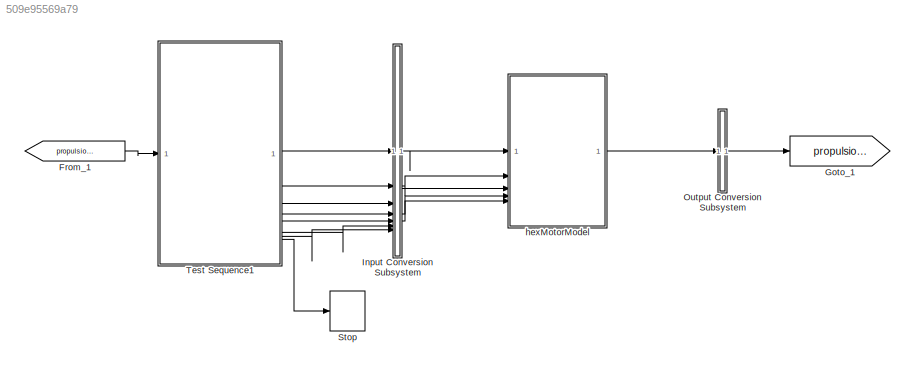
MODEL slx_509e95569a79
KIND model
BLOCK [From] From_1
  GotoTag = propulsionBus
BLOCK [Goto] Goto_1
  GotoTag = propulsionBus
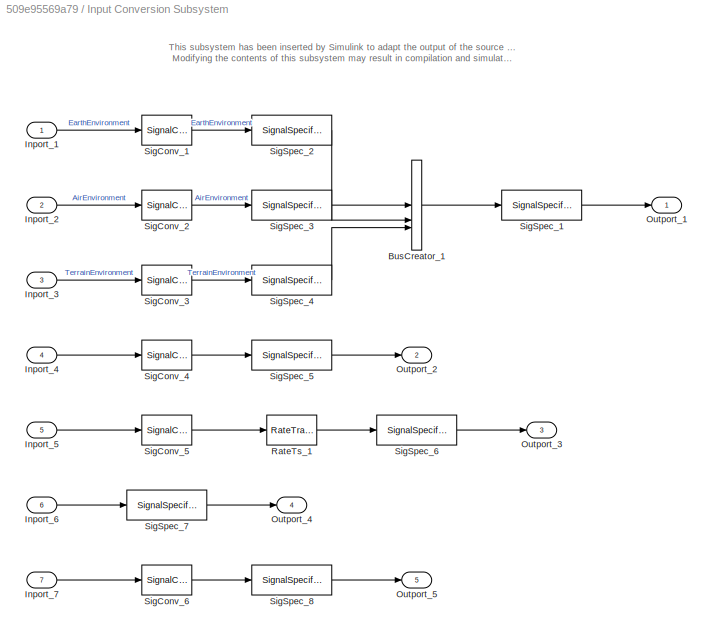
BLOCK [SubSystem] Input Conversion Subsystem
  AttributesFormatString = %<Description>
  Description = Signal spec.\nand routing
  Permissions = ReadOnly
  PermitHierarchicalResolution = ExplicitOnly
  Tag = __SLT_ICS__
  TreatAsGroupedWhenPropagatingVariantConditions = off
  UserDataPersistent = on
BLOCK [BusCreator] Input Conversion Subsystem/BusCreator_1
  InheritFromInputs = on
  Inputs = 3
  OutDataTypeStr = Bus: EnvironmentBus
BLOCK [Inport] Input Conversion Subsystem/Inport_1
BLOCK [Inport] Input Conversion Subsystem/Inport_2
  Port = 2
BLOCK [Inport] Input Conversion Subsystem/Inport_3
  Port = 3
BLOCK [Inport] Input Conversion Subsystem/Inport_4
  Port = 4
BLOCK [Inport] Input Conversion Subsystem/Inport_5
  Port = 5
BLOCK [Inport] Input Conversion Subsystem/Inport_6
  Port = 6
BLOCK [Inport] Input Conversion Subsystem/Inport_7
  Port = 7
BLOCK [Outport] Input Conversion Subsystem/Outport_1
BLOCK [Outport] Input Conversion Subsystem/Outport_2
  Port = 2
BLOCK [Outport] Input Conversion Subsystem/Outport_3
  Port = 3
BLOCK [Outport] Input Conversion Subsystem/Outport_4
  Port = 4
BLOCK [Outport] Input Conversion Subsystem/Outport_5
  Port = 5
BLOCK [RateTransition] Input Conversion Subsystem/RateTs_1
  OutPortSampleTime = 0.004
BLOCK [SignalConversion] Input Conversion Subsystem/SigConv_1
  ConversionOutput = Nonvirtual bus
  OverrideOpt = off
BLOCK [SignalConversion] Input Conversion Subsystem/SigConv_2
  ConversionOutput = Nonvirtual bus
  OverrideOpt = off
BLOCK [SignalConversion] Input Conversion Subsystem/SigConv_3
  ConversionOutput = Nonvirtual bus
  OverrideOpt = off
BLOCK [SignalConversion] Input Conversion Subsystem/SigConv_4
  ConversionOutput = Virtual bus
  OverrideOpt = off
BLOCK [SignalConversion] Input Conversion Subsystem/SigConv_5
  ConversionOutput = Virtual bus
  OverrideOpt = off
BLOCK [SignalConversion] Input Conversion Subsystem/SigConv_6
  ConversionOutput = Virtual bus
  OverrideOpt = off
BLOCK [SignalSpecification] Input Conversion Subsystem/SigSpec_1
  OutDataTypeStr = Bus: EnvironmentBus
  SampleTime = [-1, 0]
BLOCK [SignalSpecification] Input Conversion Subsystem/SigSpec_2
  BusOutputAsStruct = on
  Dimensions = [1]
  OutDataTypeStr = Bus: EarthEnvironmentBus
  SignalType = real
  VarSizeSig = No
BLOCK [SignalSpecification] Input Conversion Subsystem/SigSpec_3
  BusOutputAsStruct = on
  Dimensions = [1]
  OutDataTypeStr = Bus: AirEnvironmentBus
  SignalType = real
  VarSizeSig = No
BLOCK [SignalSpecification] Input Conversion Subsystem/SigSpec_4
  BusOutputAsStruct = on
  Dimensions = [1]
  OutDataTypeStr = Bus: TerrainEnvironmentBus
  SignalType = real
  VarSizeSig = No
BLOCK [SignalSpecification] Input Conversion Subsystem/SigSpec_5
  OutDataTypeStr = Bus: MotorCommandHexBus
BLOCK [SignalSpecification] Input Conversion Subsystem/SigSpec_6
  OutDataTypeStr = Bus: AirDataBus
BLOCK [SignalSpecification] Input Conversion Subsystem/SigSpec_7
  Dimensions = [1]
  OutDataTypeStr = double
  SampleTime = [-1, 0]
  SignalType = real
  VarSizeSig = No
BLOCK [SignalSpecification] Input Conversion Subsystem/SigSpec_8
  OutDataTypeStr = Bus: FailureBus
  SampleTime = [-1, 0]
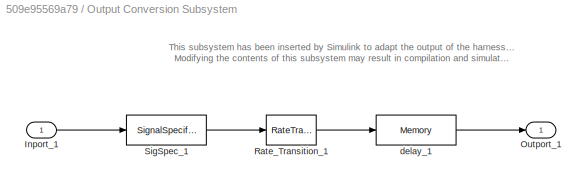
BLOCK [SubSystem] Output Conversion Subsystem
  AttributesFormatString = %<Description>
  Description = Signal spec.\nand routing
  Permissions = ReadOnly
  PermitHierarchicalResolution = ExplicitOnly
  Tag = __SLT_OCS__
  TreatAsGroupedWhenPropagatingVariantConditions = off
  UserDataPersistent = on
BLOCK [Inport] Output Conversion Subsystem/Inport_1
BLOCK [Outport] Output Conversion Subsystem/Outport_1
BLOCK [RateTransition] Output Conversion Subsystem/Rate_Transition_1
  OutPortSampleTimeOpt = Inherit
BLOCK [SignalSpecification] Output Conversion Subsystem/SigSpec_1
  BusOutputAsStruct = on
  Dimensions = [1]
  OutDataTypeStr = Bus: PropulsionBus
  SignalType = real
  VarSizeSig = No
BLOCK [Memory] Output Conversion Subsystem/delay_1
  InitialCondition = IC1
BLOCK [Stop] Stop
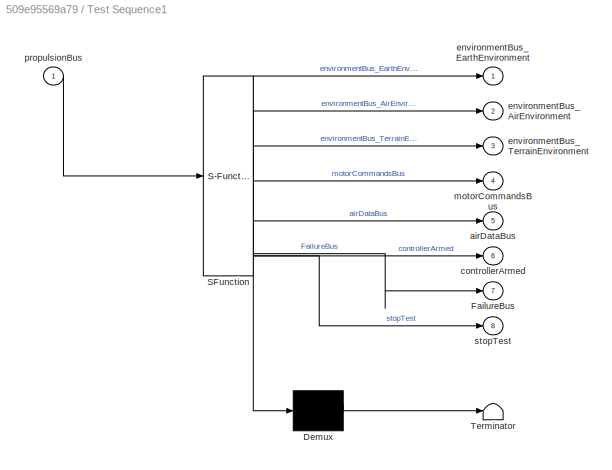
BLOCK [SubSystem] Test Sequence1
  ErrorFcn = Stateflow.Translate.translate
  PermitHierarchicalResolution = ExplicitOnly
  SFBlockType = Test Sequence
  ShowPortLabels = none
  TreatAsAtomicUnit = on
BLOCK [Demux] Test Sequence1/ Demux 
  Outputs = 1
BLOCK [S-Function] Test Sequence1/ SFunction 
  EnableBusSupport = on
  FunctionName = sf_sfun
  Parameters = 1,rpm2radps
  PortCounts = [1 9]
  SFcnIsStateOwnerBlock = off
  SFunctionDeploymentMode = off
  Tag = Stateflow S-Function 1
BLOCK [Terminator] Test Sequence1/ Terminator 
BLOCK [Outport] Test Sequence1/FailureBus
  Port = 7
BLOCK [Outport] Test Sequence1/airDataBus
  Port = 5
BLOCK [Outport] Test Sequence1/controllerArmed
  Port = 6
BLOCK [Outport] Test Sequence1/environmentBus_AirEnvironment
  Port = 2
BLOCK [Outport] Test Sequence1/environmentBus_EarthEnvironment
BLOCK [Outport] Test Sequence1/environmentBus_TerrainEnvironment
  Port = 3
BLOCK [Outport] Test Sequence1/motorCommandsBus
  Port = 4
BLOCK [Inport] Test Sequence1/propulsionBus
BLOCK [Outport] Test Sequence1/stopTest
  Port = 8
BLOCK [ModelReference] hexMotorModel
  ModelNameDialog = hexMotorModel
  ModelReferenceVersion = 1.207
ANNOTATION Input Conversion Subsystem: This subsystem has been inserted by Simulink to adapt the output of the source blocks to the interface required by the harnessed component. Modifying the contents of this subsystem may result in compilation and simulation failure.
ANNOTATION Output Conversion Subsystem: This subsystem has been inserted by Simulink to adapt the output of the harnessed component to the interface required by the sink blocks. Modifying the contents of this subsystem may result in compilation and simulation failure.
LINE From_1:1 -> Test Sequence1:1
LINE Input Conversion Subsystem/BusCreator_1:1 -> Input Conversion Subsystem/SigSpec_1:1
LINE Input Conversion Subsystem/Inport_1:1 -> Input Conversion Subsystem/SigConv_1:1
LINE Input Conversion Subsystem/Inport_2:1 -> Input Conversion Subsystem/SigConv_2:1
LINE Input Conversion Subsystem/Inport_3:1 -> Input Conversion Subsystem/SigConv_3:1
LINE Input Conversion Subsystem/Inport_4:1 -> Input Conversion Subsystem/SigConv_4:1
LINE Input Conversion Subsystem/Inport_5:1 -> Input Conversion Subsystem/SigConv_5:1
LINE Input Conversion Subsystem/Inport_6:1 -> Input Conversion Subsystem/SigSpec_7:1
LINE Input Conversion Subsystem/Inport_7:1 -> Input Conversion Subsystem/SigConv_6:1
LINE Input Conversion Subsystem/RateTs_1:1 -> Input Conversion Subsystem/SigSpec_6:1
LINE Input Conversion Subsystem/SigConv_1:1 -> Input Conversion Subsystem/SigSpec_2:1
LINE Input Conversion Subsystem/SigConv_2:1 -> Input Conversion Subsystem/SigSpec_3:1
LINE Input Conversion Subsystem/SigConv_3:1 -> Input Conversion Subsystem/SigSpec_4:1
LINE Input Conversion Subsystem/SigConv_4:1 -> Input Conversion Subsystem/SigSpec_5:1
LINE Input Conversion Subsystem/SigConv_5:1 -> Input Conversion Subsystem/RateTs_1:1
LINE Input Conversion Subsystem/SigConv_6:1 -> Input Conversion Subsystem/SigSpec_8:1
LINE Input Conversion Subsystem/SigSpec_1:1 -> Input Conversion Subsystem/Outport_1:1
LINE Input Conversion Subsystem/SigSpec_2:1 -> Input Conversion Subsystem/BusCreator_1:1
LINE Input Conversion Subsystem/SigSpec_3:1 -> Input Conversion Subsystem/BusCreator_1:2
LINE Input Conversion Subsystem/SigSpec_4:1 -> Input Conversion Subsystem/BusCreator_1:3
LINE Input Conversion Subsystem/SigSpec_5:1 -> Input Conversion Subsystem/Outport_2:1
LINE Input Conversion Subsystem/SigSpec_6:1 -> Input Conversion Subsystem/Outport_3:1
LINE Input Conversion Subsystem/SigSpec_7:1 -> Input Conversion Subsystem/Outport_4:1
LINE Input Conversion Subsystem/SigSpec_8:1 -> Input Conversion Subsystem/Outport_5:1
LINE Input Conversion Subsystem:1 -> hexMotorModel:1
LINE Input Conversion Subsystem:2 -> hexMotorModel:2
LINE Input Conversion Subsystem:3 -> hexMotorModel:3
LINE Input Conversion Subsystem:4 -> hexMotorModel:4
LINE Input Conversion Subsystem:5 -> hexMotorModel:5
LINE Output Conversion Subsystem/Inport_1:1 -> Output Conversion Subsystem/SigSpec_1:1
LINE Output Conversion Subsystem/Rate_Transition_1:1 -> Output Conversion Subsystem/delay_1:1
LINE Output Conversion Subsystem/SigSpec_1:1 -> Output Conversion Subsystem/Rate_Transition_1:1
LINE Output Conversion Subsystem/delay_1:1 -> Output Conversion Subsystem/Outport_1:1
LINE Output Conversion Subsystem:1 -> Goto_1:1
LINE Test Sequence1:1 -> Input Conversion Subsystem:1
LINE Test Sequence1:2 -> Input Conversion Subsystem:2
LINE Test Sequence1:3 -> Input Conversion Subsystem:3
LINE Test Sequence1:4 -> Input Conversion Subsystem:4
LINE Test Sequence1:5 -> Input Conversion Subsystem:5
LINE Test Sequence1:6 -> Input Conversion Subsystem:6
LINE Test Sequence1:7 -> Input Conversion Subsystem:7
LINE Test Sequence1:8 -> Stop:1
LINE hexMotorModel:1 -> Output Conversion Subsystem:1
CHART Test Sequence1 states=25 transitions=25
  STATE_LABEL 'Hexarotor'
  STATE_LABEL 'Initialize\n\n%% Initialize data outputs.\nenvironmentBus_EarthEnvironment.gravityScalar_mps2 = 0;\nenvironmentBus_EarthEnvironment.worldMagneticFieldInNED_nT = zeros(3,1);\nenvironmentBus_EarthEnvironment.mulh = zeros(3,1);\nenvironmentBus_AirEnvironment.airTemperature_K = 0;\nenvironmentBus_AirEnvironment.airPressure_Pa = 0;\nenvironmentBus_AirEnvironment.airDensity_kgpm3 = 1.225;\nenvironmentBus_AirEnvi...<+905ch>'
  STATE_LABEL 'attemptSpinWithoutArm\nmotorCommandsBus.cmdRotor1_nd = 1;\nmotorCommandsBus.cmdRotor2_nd = 1;\nmotorCommandsBus.cmdRotor3_nd = 1;\nmotorCommandsBus.cmdRotor4_nd = 1;\nmotorCommandsBus.cmdRotor5_nd = 1;\nmotorCommandsBus.cmdRotor6_nd = 1;'
  STATE_LABEL 'verifyNoSpin\nverify(isClose(sum(propulsionBus.rotorAngVel_radps),0))\nverify(isClose(sum(propulsionBus.EngineForcesMomentsBus.forcesInBody_N),0))\nverify(isClose(sum(propulsionBus.EngineForcesMomentsBus.momentsInBody_Nm),0))'
  STATE_LABEL 'armController\ncontrollerArmed  = 1;'
  STATE_LABEL 'verifyControllerArm\nverify(isClose(sum(propulsionBus.rotorAngVel_radps)/6, 3473 * rpm2radps ))% Check that we have max angular velocity on all rotors (3473 is max RPM)\nverify(propulsionBus.EngineForcesMomentsBus.forcesInBody_N(3) < 0)\nverify(isClose(sum(propulsionBus.EngineForcesMomentsBus.momentsInBody_Nm(3)), 0))\nmaxForce = propulsionBus.EngineForcesMomentsBus.forcesInBody_N;\nmaxAngVel_radps = p...<+34ch>'
  STATE_LABEL 'AttemptOOBCommandOver\nmotorCommandsBus.cmdRotor1_nd = 2;\nmotorCommandsBus.cmdRotor2_nd = 2;\nmotorCommandsBus.cmdRotor3_nd = 2;\nmotorCommandsBus.cmdRotor4_nd = 2;\nmotorCommandsBus.cmdRotor5_nd = 2;\nmotorCommandsBus.cmdRotor6_nd = 2;'
  STATE_LABEL 'verifyOutputNoChange\nverify(isClose(propulsionBus.EngineForcesMomentsBus.forcesInBody_N(1),maxForce(1)))\nverify(isClose(propulsionBus.EngineForcesMomentsBus.forcesInBody_N(2),maxForce(2)))\nverify(isClose(propulsionBus.EngineForcesMomentsBus.forcesInBody_N(3),maxForce(3)))\nverify(isClose(maxAngVel_radps,propulsionBus.rotorAngVel_radps(1)))'
  STATE_LABEL 'killAllMotorsButCommand1\nmotorCommandsBus.cmdRotor2_nd = 0;\nmotorCommandsBus.cmdRotor3_nd = 0;\nmotorCommandsBus.cmdRotor4_nd = 0;\nmotorCommandsBus.cmdRotor5_nd = 0;\nmotorCommandsBus.cmdRotor6_nd = 0;'
  STATE_LABEL 'verifyMotor1OnlyRunning\nverify(propulsionBus.EngineForcesMomentsBus.momentsInBody_Nm(1) < 0) % Motor 1 creates negative rotation about body X-axis\nverify(isClose(propulsionBus.EngineForcesMomentsBus.momentsInBody_Nm(2),  0)) %this will change if DFC angle\nverify(propulsionBus.EngineForcesMomentsBus.momentsInBody_Nm(3) < 0) % Motor 1 creates negative torque\nverify(isClose(propulsionBus.EngineForces...<+98ch>'
  STATE_LABEL 'testMotor2\nmotorCommandsBus.cmdRotor1_nd = 0;\nmotorCommandsBus.cmdRotor2_nd = 1;'
  STATE_LABEL 'verifyMotor2OnlyRunning\nverify(propulsionBus.EngineForcesMomentsBus.momentsInBody_Nm(1) > 0)\nverify(isClose(propulsionBus.EngineForcesMomentsBus.momentsInBody_Nm(2),  0)) %this will change if DFC angle\nverify(propulsionBus.EngineForcesMomentsBus.momentsInBody_Nm(3) > 0)\n\nverify(isClose(propulsionBus.EngineForcesMomentsBus.forcesInBody_N(3),maxForce(3) / 6)) % Verify that the force of only one moto...<+11ch>'
  STATE_LABEL 'testMotor3\nmotorCommandsBus.cmdRotor2_nd = 0;\nmotorCommandsBus.cmdRotor3_nd = 1;'
  STATE_LABEL 'verifyMotor3\nverify(propulsionBus.EngineForcesMomentsBus.momentsInBody_Nm(1) > 0)\nverify(propulsionBus.EngineForcesMomentsBus.momentsInBody_Nm(2) > 0)\nverify(propulsionBus.EngineForcesMomentsBus.momentsInBody_Nm(3) < 0)\n\nverify(isClose(propulsionBus.EngineForcesMomentsBus.forcesInBody_N(3),maxForce(3) / 6)) % Verify that the force of only one motor is output'
  STATE_LABEL 'testMotor4\nmotorCommandsBus.cmdRotor3_nd = 0;\nmotorCommandsBus.cmdRotor4_nd = 1;'
  STATE_LABEL 'verifyMotor4\nverify(propulsionBus.EngineForcesMomentsBus.momentsInBody_Nm(1) < 0)\nverify(propulsionBus.EngineForcesMomentsBus.momentsInBody_Nm(2) < 0)\nverify(propulsionBus.EngineForcesMomentsBus.momentsInBody_Nm(3) > 0)\n\nverify(isClose(propulsionBus.EngineForcesMomentsBus.forcesInBody_N(3),maxForce(3) / 6)) % Verify that the force of only one motor is output'
  STATE_LABEL 'testMotor5\nmotorCommandsBus.cmdRotor4_nd = 0;\nmotorCommandsBus.cmdRotor5_nd = 1;'
  STATE_LABEL 'verifyMotor5\nverify(propulsionBus.EngineForcesMomentsBus.momentsInBody_Nm(1) < 0)\nverify(propulsionBus.EngineForcesMomentsBus.momentsInBody_Nm(2) > 0)\nverify(propulsionBus.EngineForcesMomentsBus.momentsInBody_Nm(3) > 0)\n\nverify(isClose(propulsionBus.EngineForcesMomentsBus.forcesInBody_N(3),maxForce(3) / 6)) % Verify that the force of only one motor is output'
  STATE_LABEL 'testMotor6\nmotorCommandsBus.cmdRotor5_nd = 0;\nmotorCommandsBus.cmdRotor6_nd = 1;'
  STATE_LABEL 'verifyMotor6\nverify(propulsionBus.EngineForcesMomentsBus.momentsInBody_Nm(1) > 0)\nverify(propulsionBus.EngineForcesMomentsBus.momentsInBody_Nm(2) < 0)\nverify(propulsionBus.EngineForcesMomentsBus.momentsInBody_Nm(3) < 0)\n\nverify(isClose(propulsionBus.EngineForcesMomentsBus.forcesInBody_N(3),maxForce(3) / 6)) % Verify that the force of only one motor is output'
  STATE_LABEL 'AttemptOOBCommandUnder\nmotorCommandsBus.cmdRotor1_nd = -2;\nmotorCommandsBus.cmdRotor2_nd = -2;\nmotorCommandsBus.cmdRotor3_nd = -2;\nmotorCommandsBus.cmdRotor4_nd = -2;\nmotorCommandsBus.cmdRotor5_nd = -2;\nmotorCommandsBus.cmdRotor6_nd = -2;'
  STATE_LABEL 'verifyOutputZero\nverify(isClose(sum(propulsionBus.rotorAngVel_radps),0))\nverify(isClose(sum(propulsionBus.EngineForcesMomentsBus.forcesInBody_N),0))\nverify(isClose(sum(propulsionBus.EngineForcesMomentsBus.momentsInBody_Nm),0))'
  STATE_LABEL 'injectRotorFailures\nFailureBus.rotorFailure1_nd = true;\nFailureBus.rotorFailure2_nd = true;\nFailureBus.rotorFailure3_nd = true;\nFailureBus.rotorFailure4_nd = true;\nFailureBus.rotorFailure5_nd = true;\nFailureBus.rotorFailure6_nd = true;'
  STATE_LABEL 'verifyFailure\nverify(isClose(propulsionBus.EngineForcesMomentsBus.momentsInBody_Nm(1), 0))\nverify(isClose(propulsionBus.EngineForcesMomentsBus.momentsInBody_Nm(2), 0))\nverify(isClose(propulsionBus.EngineForcesMomentsBus.momentsInBody_Nm(3), 0))\nverify(isClose(propulsionBus.EngineForcesMomentsBus.forcesInBody_N(1), 0))\nverify(isClose(propulsionBus.EngineForcesMomentsBus.forcesInBody_N(2), 0))\nverif...<+70ch>'
  STATE_LABEL 'EndTest\nstopTest = true;'
  STATE_LABEL '[\ntrue\n]'
  STATE_LABEL '[\nafter(1,sec)\n]'
  STATE_LABEL '[\ntrue\n]'
  STATE_LABEL '[\nafter(1,sec)\n]'
  STATE_LABEL '[\ntrue\n]'
  STATE_LABEL '[\nafter(1,sec)\n]'
  STATE_LABEL '[\ntrue\n]'
  STATE_LABEL '[\nafter(1,sec)\n]'
  STATE_LABEL '[\ntrue\n]'
  STATE_LABEL '[\nafter(1,sec)\n]'
  STATE_LABEL '[\ntrue\n]'
  STATE_LABEL '[\nafter(1,sec)\n]'
  STATE_LABEL '[\ntrue\n]'
  STATE_LABEL '[\nafter(1,sec)\n]'
  STATE_LABEL '[\ntrue\n]'
